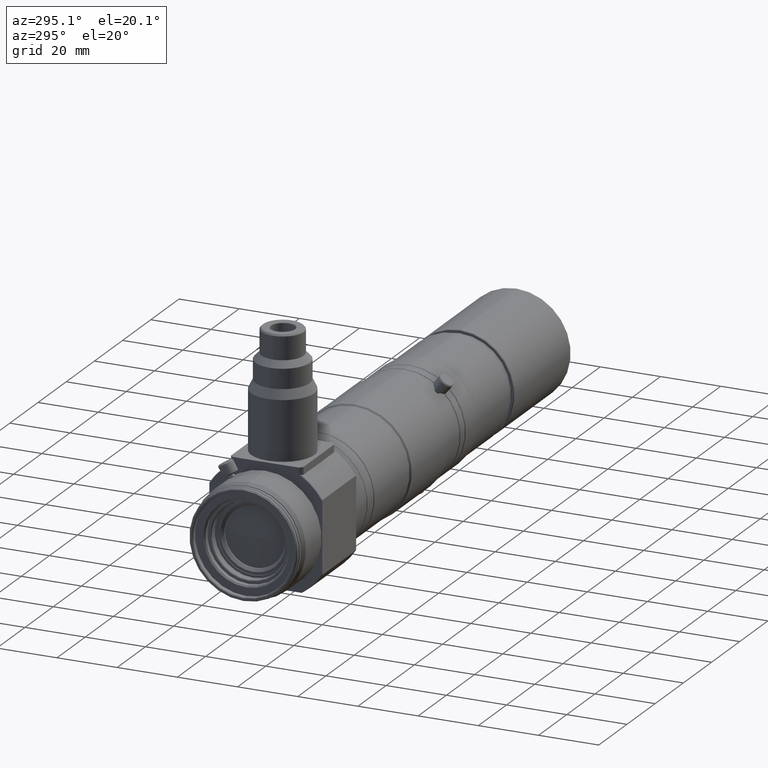
[diagram: clean part render]
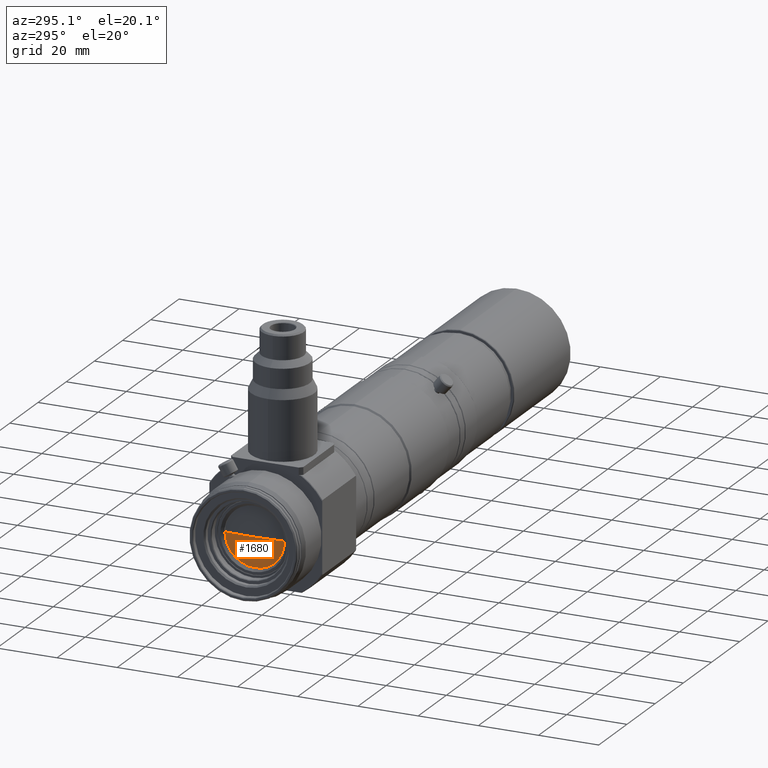
[diagram: same view with one face highlighted and labeled with its STEP entity id]
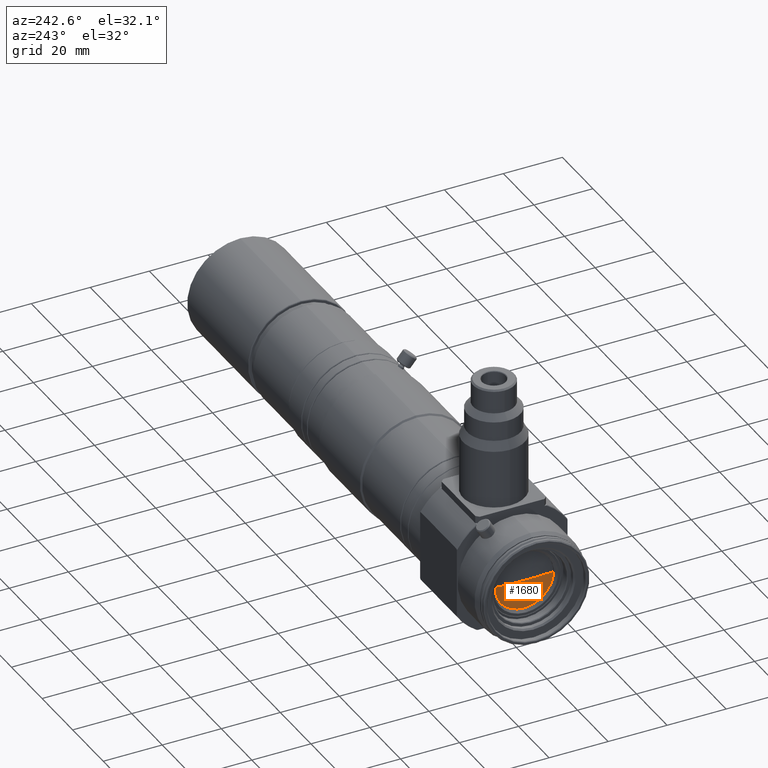
[diagram: same view with one face highlighted and labeled with its STEP entity id]
A machine part, auxiliary view. The second image highlights one B-rep face of the part: STEP entity #1680.
A second angle (auxiliary view) of the same face is appended — the face is thin or edge-on in the first view.
In plain terms, the highlighted spherical surface has radius 131.8 mm.
Its self-contained STEP definition (entity closure, byte-faithful):
#379 = DIRECTION ( 'NONE',  ( 0.0000000000000000000, -0.0000000000000000000, 1.000000000000000000 ) ) ;
#381 = CARTESIAN_POINT ( 'NONE',  ( -73.54299565969196800, -2.149391775674303100E-013, 0.0000000000000000000 ) ) ;
#384 = DIRECTION ( 'NONE',  ( 0.0000000000000000000, 1.000000000000000000, 0.0000000000000000000 ) ) ;
#831 = CARTESIAN_POINT ( 'NONE',  ( -204.9630854481257200, 0.0000000000000000000, 0.0000000000000000000 ) ) ;
#832 = DIRECTION ( 'NONE',  ( 1.000000000000000000, -0.0000000000000000000, -0.0000000000000000000 ) ) ;
#833 = DIRECTION ( 'NONE',  ( 0.0000000000000000000, 0.0000000000000000000, -1.000000000000000000 ) ) ;
#1680 = ADVANCED_FACE ( 'NONE', ( #6018 ), #6022, .T. ) ;
#1905 = EDGE_CURVE ( 'NONE', #5348, #5324, #6667, .T. ) ;
#2874 = CARTESIAN_POINT ( 'NONE',  ( -73.54299565969196800, -2.149391775674303100E-013, 0.0000000000000000000 ) ) ;
#2875 = DIRECTION ( 'NONE',  ( 0.0000000000000000000, 1.224646799147353200E-016, 1.000000000000000000 ) ) ;
#2876 = DIRECTION ( 'NONE',  ( 0.0000000000000000000, -1.000000000000000000, 1.224646799147353000E-016 ) ) ;
#2877 = CARTESIAN_POINT ( 'NONE',  ( -73.54299565969196800, -2.149391775674303100E-013, 0.0000000000000000000 ) ) ;
#2878 = DIRECTION ( 'NONE',  ( 0.0000000000000000000, 0.0000000000000000000, -1.000000000000000000 ) ) ;
#2879 = DIRECTION ( 'NONE',  ( -1.000000000000000000, 0.0000000000000000000, 0.0000000000000000000 ) ) ;
#2897 = CARTESIAN_POINT ( 'NONE',  ( -204.9630854481257200, 0.0000000000000000000, 0.0000000000000000000 ) ) ;
#2898 = DIRECTION ( 'NONE',  ( 1.000000000000000000, -0.0000000000000000000, -0.0000000000000000000 ) ) ;
#2899 = DIRECTION ( 'NONE',  ( 0.0000000000000000000, 0.0000000000000000000, -1.000000000000000000 ) ) ;
#3071 = CARTESIAN_POINT ( 'NONE',  ( -204.9630854481257500, 9.999999999999980500, 0.0000000000000000000 ) ) ;
#3085 = CARTESIAN_POINT ( 'NONE',  ( -204.9630854481257500, -10.00000000000019500, 1.224646799147350900E-015 ) ) ;
#3095 = CARTESIAN_POINT ( 'NONE',  ( -204.9630854481257200, 0.0000000000000000000, -10.00000000000003600 ) ) ;
#3236 = CARTESIAN_POINT ( 'NONE',  ( -205.3429956596919500, -2.068687551610492300E-013, 0.0000000000000000000 ) ) ;
#4233 = EDGE_LOOP ( 'NONE', ( #4841, #4842, #4843, #4844 ) ) ;
#4482 = EDGE_CURVE ( 'NONE', #5489, #5338, #7520, .T. ) ;
#4483 = EDGE_CURVE ( 'NONE', #5489, #5324, #7516, .T. ) ;
#4490 = EDGE_CURVE ( 'NONE', #5338, #5348, #7529, .T. ) ;
#4841 = ORIENTED_EDGE ( 'NONE', *, *, #4482, .F. ) ;
#4842 = ORIENTED_EDGE ( 'NONE', *, *, #4483, .T. ) ;
#4843 = ORIENTED_EDGE ( 'NONE', *, *, #1905, .F. ) ;
#4844 = ORIENTED_EDGE ( 'NONE', *, *, #4490, .F. ) ;
#5324 = VERTEX_POINT ( 'NONE', #3071 ) ;
#5338 = VERTEX_POINT ( 'NONE', #3085 ) ;
#5348 = VERTEX_POINT ( 'NONE', #3095 ) ;
#5489 = VERTEX_POINT ( 'NONE', #3236 ) ;
#6018 = FACE_OUTER_BOUND ( 'NONE', #4233, .T. ) ;
#6022 = SPHERICAL_SURFACE ( 'NONE', #6249, 131.7999999999999800 ) ;
#6249 = AXIS2_PLACEMENT_3D ( 'NONE', #381, #379, #384 ) ;
#6667 = CIRCLE ( 'NONE', #7202, 10.00000000000003600 ) ;
#7202 = AXIS2_PLACEMENT_3D ( 'NONE', #831, #832, #833 ) ;
#7378 = AXIS2_PLACEMENT_3D ( 'NONE', #2874, #2875, #2876 ) ;
#7379 = AXIS2_PLACEMENT_3D ( 'NONE', #2877, #2878, #2879 ) ;
#7384 = AXIS2_PLACEMENT_3D ( 'NONE', #2897, #2898, #2899 ) ;
#7516 = CIRCLE ( 'NONE', #7379, 131.7999999999999800 ) ;
#7520 = CIRCLE ( 'NONE', #7378, 131.7999999999999800 ) ;
#7529 = CIRCLE ( 'NONE', #7384, 10.00000000000003600 ) ;